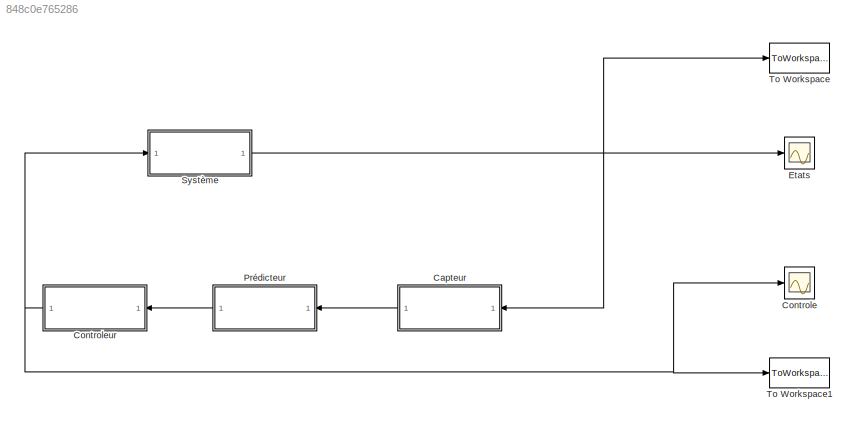
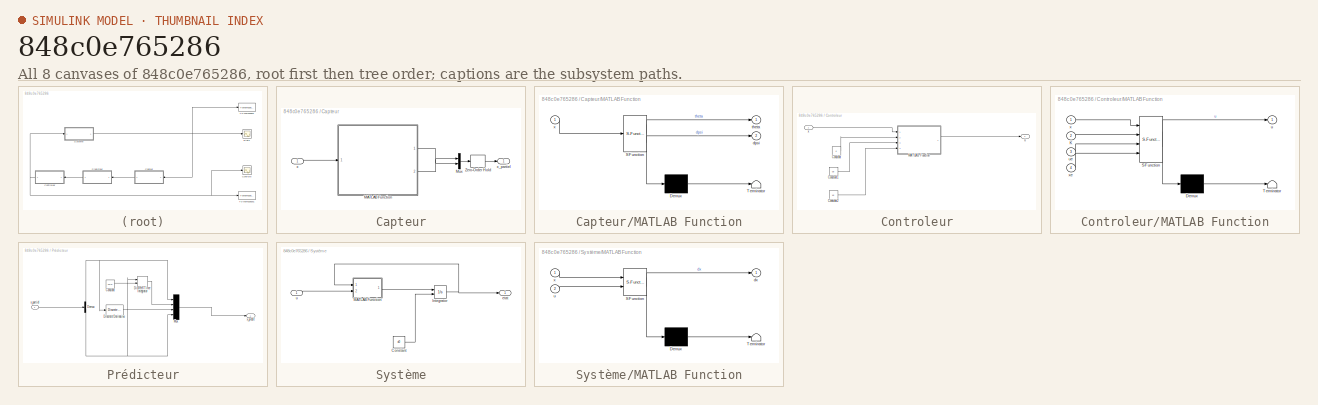
[diagram: thumbnail index - all 8 canvases of the model, root first then tree order]
MODEL slx_848c0e765286
KIND model
CONFIG AbsTol = auto
CONFIG EnableMultiTasking = off
CONFIG FixedStep = auto
CONFIG MaxStep = auto
CONFIG MinStep = auto
CONFIG RelTol = 1e-3
CONFIG SampleTimeConstraint = Unconstrained
CONFIG Solver = VariableStepAuto
CONFIG SolverName = VariableStepAuto
CONFIG StartTime = 0.0
CONFIG StopTime = 10.0
BLOCK [SubSystem] Capteur
  Ports = [1, 1]
  RequestExecContextInheritance = off
  Variant = off
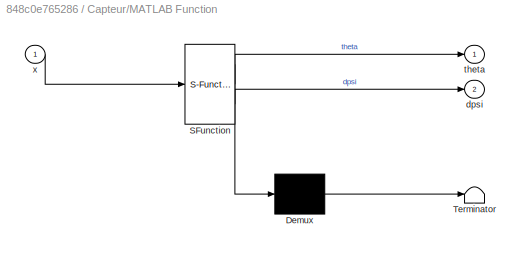
BLOCK [SubSystem] Capteur/MATLAB Function
  ErrorFcn = Stateflow.Translate.translate
  PermitHierarchicalResolution = ExplicitOnly
  Ports = [1, 2]
  RequestExecContextInheritance = off
  SFBlockType = MATLAB Function
  TreatAsAtomicUnit = on
  Variant = off
BLOCK [Demux] Capteur/MATLAB Function/ Demux 
  Outputs = 1
  Ports = [1, 1]
BLOCK [S-Function] Capteur/MATLAB Function/ SFunction 
  EnableBusSupport = on
  FunctionName = sf_sfun
  PortCounts = [1 3]
  Ports = [1, 3]
  SFcnIsStateOwnerBlock = off
  SFunctionDeploymentMode = off
  Tag = Stateflow S-Function robot_echant_etu 3
BLOCK [Terminator] Capteur/MATLAB Function/ Terminator 
BLOCK [Outport] Capteur/MATLAB Function/dpsi
  IconDisplay = Port number
  Port = 2
BLOCK [Outport] Capteur/MATLAB Function/theta
  IconDisplay = Port number
BLOCK [Inport] Capteur/MATLAB Function/x
  IconDisplay = Port number
BLOCK [Mux] Capteur/Mux
  DisplayOption = bar
  Inputs = 2
  Ports = [2, 1]
BLOCK [ZeroOrderHold] Capteur/Zero-Order Hold
  SampleTime = delta_t
BLOCK [Inport] Capteur/x
  IconDisplay = Port number
BLOCK [Outport] Capteur/x_partiel
  IconDisplay = Port number
BLOCK [Scope] Controle
  NumInputPorts = 1
  Ports = [1]
  ScopeSpecificationString = Simulink.scopes.TimeScopeBlockCfg('CurrentConfiguration', extmgr.ConfigurationSet(extmgr.Configuration('Core','General UI',true),extmgr.Configuration('Core','Source UI',true),extmgr.Configuration('Sources','WiredSimulink',true,'DataLoggingVariableName','ScopeData1'),extmgr.Configuration('Visuals','Time Domain',true,'SerializedDisplays',{struct('MinYLimReal','-4.81066','MaxYLimReal','11.00649','YLa...<+1398ch>
BLOCK [SubSystem] Controleur
  Ports = [1, 1]
  RequestExecContextInheritance = off
  Variant = off
BLOCK [Constant] Controleur/Constant
  Value = K
BLOCK [Constant] Controleur/Constant1
  Value = ue
BLOCK [Constant] Controleur/Constant2
  Value = xe
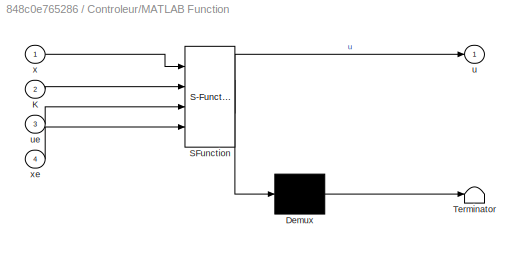
BLOCK [SubSystem] Controleur/MATLAB Function
  ErrorFcn = Stateflow.Translate.translate
  PermitHierarchicalResolution = ExplicitOnly
  Ports = [4, 1]
  RequestExecContextInheritance = off
  SFBlockType = MATLAB Function
  TreatAsAtomicUnit = on
  Variant = off
BLOCK [Demux] Controleur/MATLAB Function/ Demux 
  Outputs = 1
  Ports = [1, 1]
BLOCK [S-Function] Controleur/MATLAB Function/ SFunction 
  EnableBusSupport = on
  FunctionName = sf_sfun
  PortCounts = [4 2]
  Ports = [4, 2]
  SFcnIsStateOwnerBlock = off
  SFunctionDeploymentMode = off
  Tag = Stateflow S-Function robot_echant_etu 1
BLOCK [Terminator] Controleur/MATLAB Function/ Terminator 
BLOCK [Inport] Controleur/MATLAB Function/K
  IconDisplay = Port number
  Port = 2
BLOCK [Outport] Controleur/MATLAB Function/u
  IconDisplay = Port number
BLOCK [Inport] Controleur/MATLAB Function/ue
  IconDisplay = Port number
  Port = 3
BLOCK [Inport] Controleur/MATLAB Function/x
  IconDisplay = Port number
BLOCK [Inport] Controleur/MATLAB Function/xe
  IconDisplay = Port number
  Port = 4
BLOCK [Outport] Controleur/u
  IconDisplay = Port number
BLOCK [Inport] Controleur/x
  IconDisplay = Port number
BLOCK [Scope] Etats
  NumInputPorts = 1
  Ports = [1]
  ScopeSpecificationString = Simulink.scopes.TimeScopeBlockCfg('CurrentConfiguration', extmgr.ConfigurationSet(extmgr.Configuration('Core','General UI',true),extmgr.Configuration('Core','Source UI',true),extmgr.Configuration('Sources','WiredSimulink',true),extmgr.Configuration('Visuals','Time Domain',true,'SerializedDisplays',{struct('MinYLimReal','-0.3507','MaxYLimReal','0.38803','YLabelReal','','MinYLimMag','0.00000','MaxYL...<+1364ch>
BLOCK [SubSystem] Prédicteur
  Ports = [1, 1]
  RequestExecContextInheritance = off
  Variant = off
BLOCK [Constant] Prédicteur/Constant
  Value = x0(2)
BLOCK [Demux] Prédicteur/Demux
  DisplayOption = bar
  Outputs = 2
  Ports = [1, 2]
BLOCK [Reference] Prédicteur/Discrete Derivative  REF=simulink/Discrete/Discrete Derivative
  Ports = [1, 1]
  SourceBlock = simulink/Discrete/Discrete Derivative
  SourceProductBaseCode = SL
  SourceProductName = Simulink
  SourceType = Discrete Derivative
BLOCK [DiscreteIntegrator] Prédicteur/Discrete-Time Integrator
  ICPrevOutput = DiscIntNeverNeededParam
  ICPrevScaledInput = DiscIntNeverNeededParam
  InitialConditionSetting = State (most efficient)
  InitialConditionSource = external
  Ports = [2, 1]
  SampleTime = -1
BLOCK [Mux] Prédicteur/Mux
  DisplayOption = bar
  Ports = [4, 1]
BLOCK [Inport] Prédicteur/x_partiel
  IconDisplay = Port number
BLOCK [Outport] Prédicteur/x_prédit 
  IconDisplay = Port number
BLOCK [SubSystem] Système
  Ports = [1, 1]
  RequestExecContextInheritance = off
  Variant = off
BLOCK [Constant] Système/Constant
  Value = x0
BLOCK [Integrator] Système/Integrator
  InitialCondition = [pi/20 0]
  InitialConditionSource = external
  Ports = [2, 1]
BLOCK [SubSystem] Système/MATLAB Function
  ErrorFcn = Stateflow.Translate.translate
  PermitHierarchicalResolution = ExplicitOnly
  Ports = [2, 1]
  RequestExecContextInheritance = off
  SFBlockType = MATLAB Function
  TreatAsAtomicUnit = on
  Variant = off
BLOCK [Demux] Système/MATLAB Function/ Demux 
  Outputs = 1
  Ports = [1, 1]
BLOCK [S-Function] Système/MATLAB Function/ SFunction 
  EnableBusSupport = on
  FunctionName = sf_sfun
  PortCounts = [2 2]
  Ports = [2, 2]
  SFcnIsStateOwnerBlock = off
  SFunctionDeploymentMode = off
  Tag = Stateflow S-Function robot_echant_etu 2
BLOCK [Terminator] Système/MATLAB Function/ Terminator 
BLOCK [Outport] Système/MATLAB Function/dx
  IconDisplay = Port number
BLOCK [Inport] Système/MATLAB Function/u
  IconDisplay = Port number
  Port = 2
BLOCK [Inport] Système/MATLAB Function/x
  IconDisplay = Port number
BLOCK [Outport] Système/etat
  IconDisplay = Port number
BLOCK [Inport] Système/u
  IconDisplay = Port number
BLOCK [ToWorkspace] To Workspace
  FixptAsFi = on
  MaxDataPoints = inf
  Ports = [1]
  SampleTime = -1
  Save2DSignal = 3-D array (concatenate along third dimension)
  SaveFormat = Timeseries
  VariableName = X
BLOCK [ToWorkspace] To Workspace1
  FixptAsFi = on
  MaxDataPoints = inf
  Ports = [1]
  SampleTime = -1
  Save2DSignal = 3-D array (concatenate along third dimension)
  SaveFormat = Timeseries
  VariableName = U
LINE Capteur/MATLAB Function:1 -> Capteur/Mux:1
LINE Capteur/MATLAB Function:2 -> Capteur/Mux:2
LINE Capteur/Mux:1 -> Capteur/Zero-Order Hold:1
LINE Capteur/Zero-Order Hold:1 -> Capteur/x_partiel:1
LINE Capteur/x:1 -> Capteur/MATLAB Function:1
LINE Capteur:1 -> Prédicteur:1
LINE Controleur/Constant1:1 -> Controleur/MATLAB Function:3
LINE Controleur/Constant2:1 -> Controleur/MATLAB Function:4
LINE Controleur/Constant:1 -> Controleur/MATLAB Function:2
LINE Controleur/MATLAB Function:1 -> Controleur/u:1
LINE Controleur/x:1 -> Controleur/MATLAB Function:1
NET Controleur:1 -> Controle:1, Système:1, To Workspace1:1
LINE Prédicteur/Constant:1 -> Prédicteur/Discrete-Time Integrator:2
NET Prédicteur/Demux:1 -> Prédicteur/Discrete Derivative:1, Prédicteur/Mux:1
NET Prédicteur/Demux:2 -> Prédicteur/Discrete-Time Integrator:1, Prédicteur/Mux:4
LINE Prédicteur/Discrete Derivative:1 -> Prédicteur/Mux:3
LINE Prédicteur/Discrete-Time Integrator:1 -> Prédicteur/Mux:2
LINE Prédicteur/Mux:1 -> Prédicteur/x_prédit :1
LINE Prédicteur/x_partiel:1 -> Prédicteur/Demux:1
LINE Prédicteur:1 -> Controleur:1
LINE Système/Constant:1 -> Système/Integrator:2
NET Système/Integrator:1 -> Système/MATLAB Function:1, Système/etat:1
LINE Système/MATLAB Function:1 -> Système/Integrator:1
LINE Système/u:1 -> Système/MATLAB Function:2
NET Système:1 -> Capteur:1, Etats:1, To Workspace:1
note: NET lines group one-source signal fan-out (src -> all destinations, sorted); 1:1 wires keep LINE
CHART Controleur/MATLAB Function states=1 transitions=1
  STATE_LABEL 'eML_blk_kernel()'
  STATE_LABEL 'SCRIPT:\nfunction u = fcn(x, K, ue, xe)\nu = ue + transpose(K)*(x-xe);\n'
CHART Système/MATLAB Function states=1 transitions=1
  STATE_LABEL 'eML_blk_kernel()'
  STATE_LABEL 'SCRIPT:\nfunction dx   = fonction( x, u)\n%   Dynamic equations of motion of the segway on an axis.\n%   Inputs: - x = [theta psi dtheta dpsi]\n%               theta: average angle of the wheels      [rad]\n%               psi: body pitch angle                   [rad]\n%               dtheta: average velocity of the wheels  [rad/s]\n%               dpsi: body pitch velocity               [rad/s]\n%       ...<+1496ch>'
CHART Capteur/MATLAB Function states=1 transitions=1
  STATE_LABEL 'eML_blk_kernel()'
  STATE_LABEL 'SCRIPT:\nfunction [theta,dpsi] = fcn(x)\n\ntheta = x(1);\ndpsi = x(4);\n'
